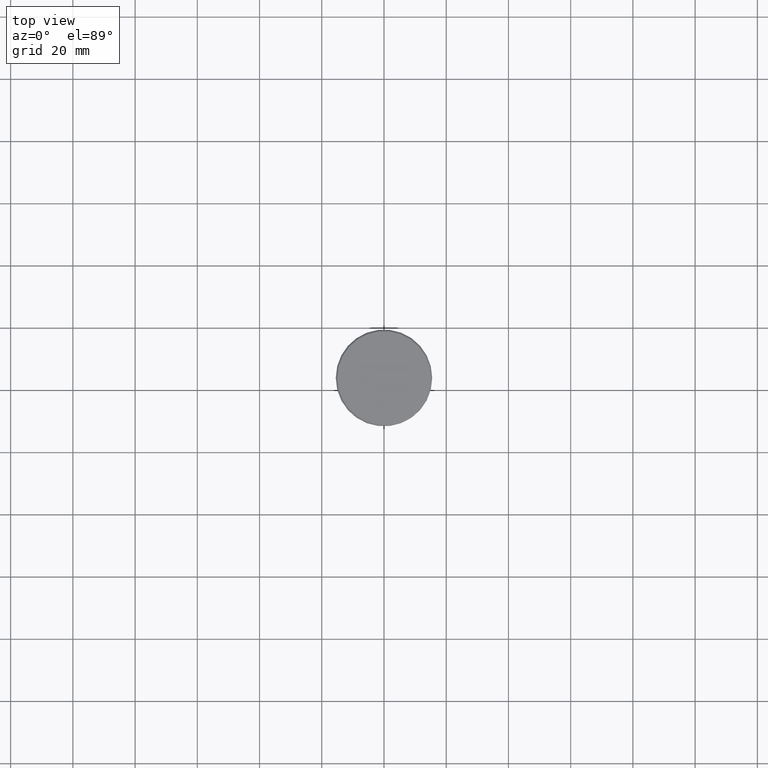
[diagram: clean part render]
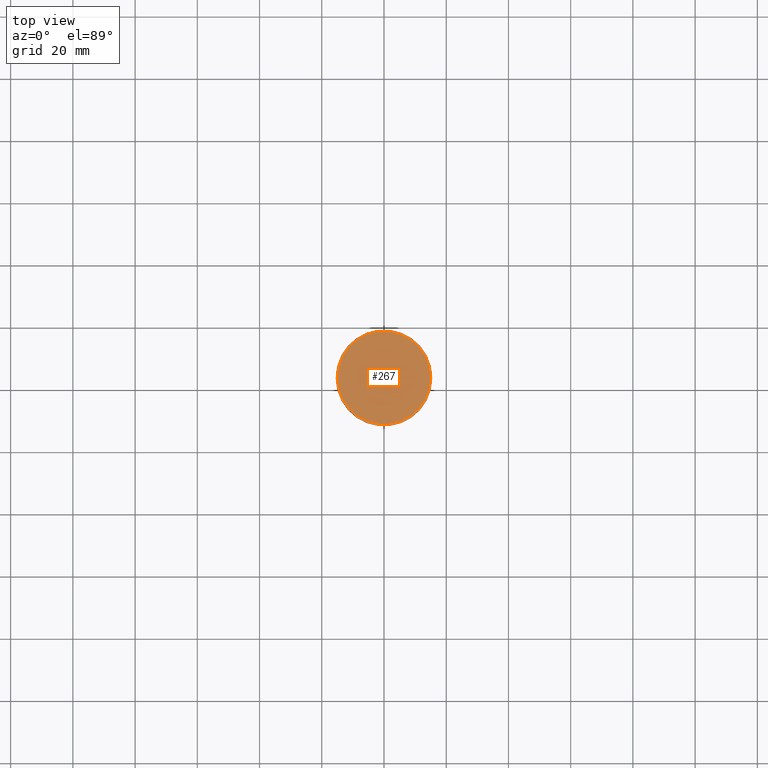
[diagram: same view with one face highlighted and labeled with its STEP entity id]
A machine part, top view. The second image highlights one B-rep face of the part: STEP entity #267.
In plain terms, the highlighted planar face has unit normal (0, -0, 1).
Its self-contained STEP definition (entity closure, byte-faithful):
#51 = PLANE ( 'NONE',  #482 ) ;
#127 = CARTESIAN_POINT ( 'NONE',  ( -14.99999999999995737, 0.000000000000000000, 0.000000000000000000 ) ) ;
#235 = DIRECTION ( 'NONE',  ( -0.000000000000000000, -0.000000000000000000, 1.000000000000000000 ) ) ;
#255 = FACE_OUTER_BOUND ( 'NONE', #368, .T. ) ;
#267 = ADVANCED_FACE ( 'NONE', ( #255 ), #51, .T. ) ;
#286 = EDGE_CURVE ( 'NONE', #1020, #1034, #337, .T. ) ;
#337 = CIRCLE ( 'NONE', #949, 14.99999999999995737 ) ;
#368 = EDGE_LOOP ( 'NONE', ( #1161, #909 ) ) ;
#468 = AXIS2_PLACEMENT_3D ( 'NONE', #590, #235, #600 ) ;
#482 = AXIS2_PLACEMENT_3D ( 'NONE', #785, #615, #619 ) ;
#513 = CIRCLE ( 'NONE', #468, 14.99999999999995737 ) ;
#590 = CARTESIAN_POINT ( 'NONE',  ( 0.000000000000000000, 0.000000000000000000, 0.000000000000000000 ) ) ;
#600 = DIRECTION ( 'NONE',  ( 1.000000000000000000, 0.000000000000000000, 0.000000000000000000 ) ) ;
#609 = DIRECTION ( 'NONE',  ( 1.000000000000000000, 0.000000000000000000, 0.000000000000000000 ) ) ;
#615 = DIRECTION ( 'NONE',  ( 0.000000000000000000, -0.000000000000000000, 1.000000000000000000 ) ) ;
#619 = DIRECTION ( 'NONE',  ( 1.000000000000000000, 0.000000000000000000, 0.000000000000000000 ) ) ;
#620 = EDGE_CURVE ( 'NONE', #1034, #1020, #513, .T. ) ;
#708 = DIRECTION ( 'NONE',  ( -0.000000000000000000, -0.000000000000000000, 1.000000000000000000 ) ) ;
#785 = CARTESIAN_POINT ( 'NONE',  ( 0.000000000000000000, 0.000000000000000000, 0.000000000000000000 ) ) ;
#792 = CARTESIAN_POINT ( 'NONE',  ( 0.000000000000000000, 0.000000000000000000, 0.000000000000000000 ) ) ;
#871 = CARTESIAN_POINT ( 'NONE',  ( 14.99999999999995737, 1.867586368699711009E-15, 0.000000000000000000 ) ) ;
#909 = ORIENTED_EDGE ( 'NONE', *, *, #286, .T. ) ;
#949 = AXIS2_PLACEMENT_3D ( 'NONE', #792, #708, #609 ) ;
#1020 = VERTEX_POINT ( 'NONE', #871 ) ;
#1034 = VERTEX_POINT ( 'NONE', #127 ) ;
#1161 = ORIENTED_EDGE ( 'NONE', *, *, #620, .T. ) ;